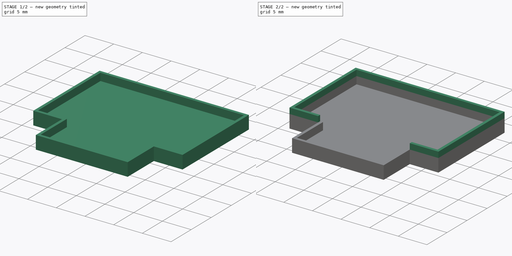
[diagram: build sequence overview — one tinted view per stage of 2, left to right]
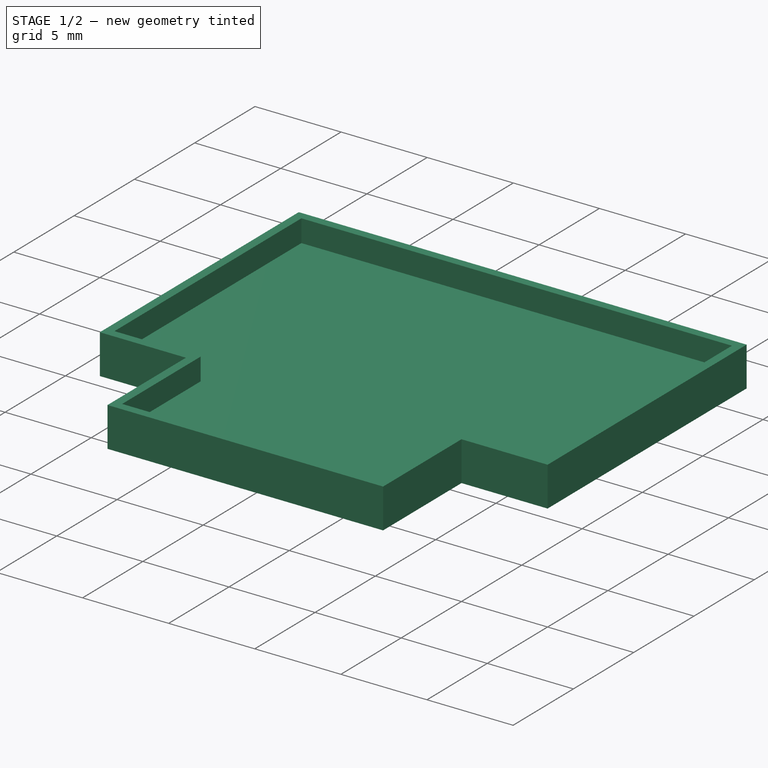
[diagram: stage 1 of 2 — iso view after this stage's code; geometry added in this stage tinted green]
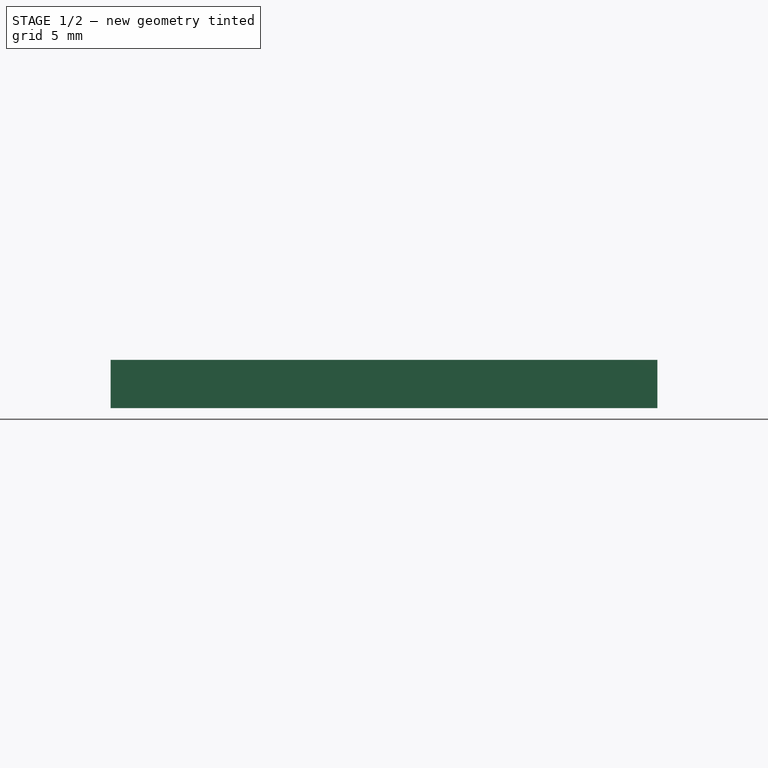
[diagram: stage 1 of 2 — front view after this stage's code; geometry added in this stage tinted green]
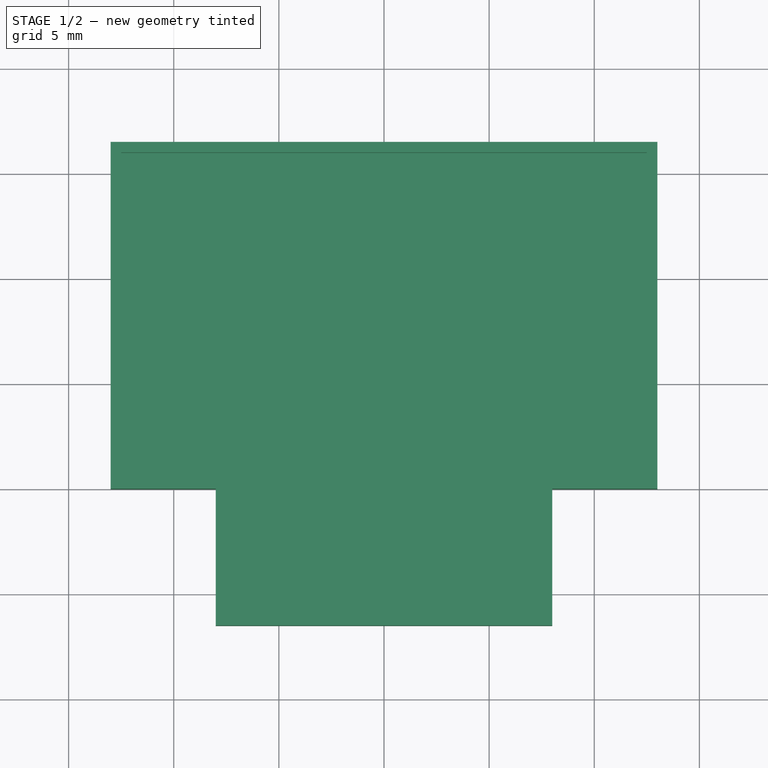
[diagram: stage 1 of 2 — top view after this stage's code; geometry added in this stage tinted green]
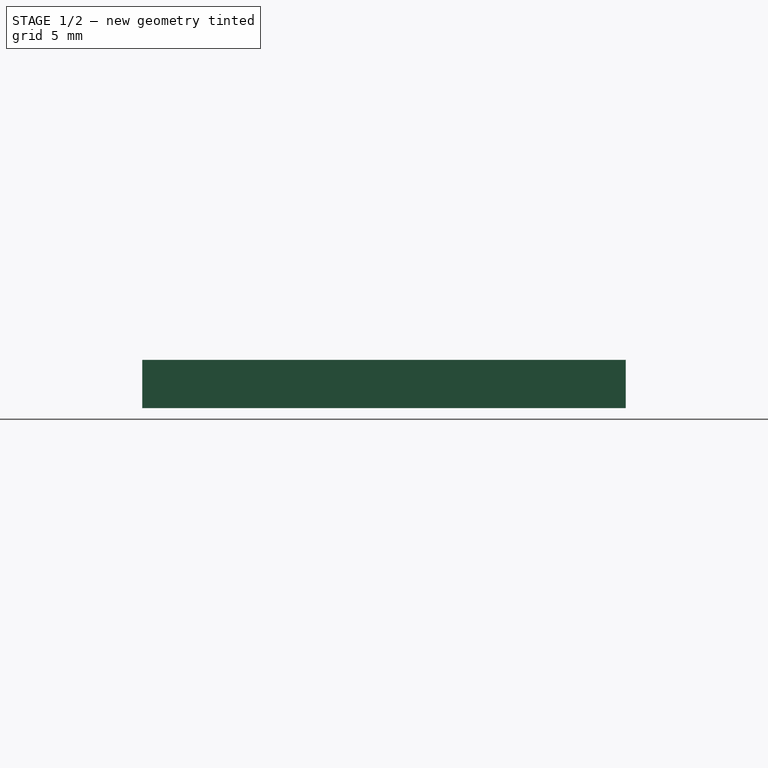
[diagram: stage 1 of 2 — right view after this stage's code; geometry added in this stage tinted green]
FCSTD DOCUMENT  (FreeCAD 0.19R24366 (Git))
Label: PimoroniTrackballEnclosure
License: All rights reserved
LicenseURL: http://en.wikipedia.org/wiki/All_rights_reserved
objects: Sketcher::SketchObject×3, PartDesign::Pad×3, PartDesign::Plane×1, PartDesign::Body×1
note: 11 computed .brp shape members not serialized (recipe doc carries the construction recipe); baked Part::Feature solids carry a one-line shape summary decoded from their .brp

FEATURE [Sketcher::SketchObject] Sketch
  FullyConstrained = true
  MapMode = 5
  Support = -> [XY_Plane]
  sketch-geometry (8):
    g0: LineSegment StartX=-13 StartY=11.5 StartZ=0 EndX=13 EndY=11.5 EndZ=0
    g1: LineSegment StartX=13 StartY=11.5 StartZ=0 EndX=13 EndY=-5 EndZ=0
    g2: LineSegment StartX=13 StartY=-5 StartZ=0 EndX=8 EndY=-5 EndZ=0
    g3: LineSegment StartX=8 StartY=-5 StartZ=0 EndX=8 EndY=-11.5 EndZ=0
    g4: LineSegment StartX=8 StartY=-11.5 StartZ=0 EndX=-8 EndY=-11.5 EndZ=0
    g5: LineSegment StartX=-8 StartY=-11.5 StartZ=0 EndX=-8 EndY=-5 EndZ=0
    g6: LineSegment StartX=-8 StartY=-5 StartZ=0 EndX=-13 EndY=-5 EndZ=0
    g7: LineSegment StartX=-13 StartY=-5 StartZ=0 EndX=-13 EndY=11.5 EndZ=0
  constraints (24):
    c: Horizontal(g0)
    c: Coincident(g0,g1)
    c: Vertical(g1)
    c: Coincident(g1,g2)
    c: Horizontal(g2)
    c: Coincident(g2,g3)
    c: Vertical(g3)
    c: Coincident(g3,g4)
    c: Horizontal(g4)
    c: Coincident(g4,g5)
    c: Vertical(g5)
    c: Coincident(g5,g6)
    c: Coincident(g6,g7)
    c: Coincident(g7,g0)
    c: Vertical(g7)
    c: Horizontal(g6)
    c: Horizontal(g5,g2)
    c: DistanceY(g3,g0) = 23
    c: DistanceY(g1,g1) = 16.5
    c: DistanceX(g0,g0) = 26
    c: DistanceX(g-1,g1) = 13
    c: DistanceX(g4,g4) = 16
    c: DistanceX(g-1,g3) = 8
    c: DistanceY(g-1,g0) = 11.5
FEATURE [PartDesign::Pad] Pad
  Direction = (1,1,1)
  Length = 1
  Length2 = 100
  Profile = -> Sketch
  Type = 0
FEATURE [PartDesign::Plane] DatumPlane
  Length = 60
  MapMode = 5
  Placement = pos=(0,0,1) rot=(0,0,1;0rad)
  ResizeMode = 0
  Support = -> [Pad]
  Width = 60
FEATURE [Sketcher::SketchObject] Sketch001
  ExternalGeometry = -> [Sketch]
  FullyConstrained = true
  MapMode = 5
  Placement = pos=(0,0,1) rot=(0,0,1;0rad)
  Support = -> [DatumPlane]
  sketch-geometry (16):
    g0: LineSegment StartX=-13 StartY=11.5 StartZ=0 EndX=13 EndY=11.5 EndZ=0
    g1: LineSegment StartX=13 StartY=11.5 StartZ=0 EndX=13 EndY=-5 EndZ=0
    g2: LineSegment StartX=13 StartY=-5 StartZ=0 EndX=8 EndY=-5 EndZ=0
    g3: LineSegment StartX=8 StartY=-5 StartZ=0 EndX=8 EndY=-11.5 EndZ=0
    g4: LineSegment StartX=8 StartY=-11.5 StartZ=0 EndX=-8 EndY=-11.5 EndZ=0
    g5: LineSegment StartX=-8 StartY=-11.5 StartZ=0 EndX=-8 EndY=-5 EndZ=0
    g6: LineSegment StartX=-8 StartY=-5 StartZ=0 EndX=-13 EndY=-5 EndZ=0
    g7: LineSegment StartX=-13 StartY=-5 StartZ=0 EndX=-13 EndY=11.5 EndZ=0
    g8: LineSegment StartX=-12.5 StartY=11 StartZ=0 EndX=-12.5 EndY=-4.5 EndZ=0
    g9: LineSegment StartX=-12.5 StartY=-4.5 StartZ=0 EndX=-7.5 EndY=-4.5 EndZ=0
    g10: LineSegment StartX=-7.5 StartY=-4.5 StartZ=0 EndX=-7.5 EndY=-11 EndZ=0
    g11: LineSegment StartX=-7.5 StartY=-11 StartZ=0 EndX=7.5 EndY=-11 EndZ=0
    g12: LineSegment StartX=7.5 StartY=-11 StartZ=0 EndX=7.5 EndY=-4.5 EndZ=0
    g13: LineSegment StartX=7.5 StartY=-4.5 StartZ=0 EndX=12.5 EndY=-4.5 EndZ=0
    g14: LineSegment StartX=12.5 StartY=-4.5 StartZ=0 EndX=12.5 EndY=11 EndZ=0
    g15: LineSegment StartX=12.5 StartY=11 StartZ=0 EndX=-12.5 EndY=11 EndZ=0
  constraints (40):
    c: Coincident(g-10,g0)
    c: Coincident(g0,g-10)
    c: Coincident(g0,g1)
    c: Coincident(g1,g-4)
    c: Coincident(g1,g2)
    c: Coincident(g2,g-5)
    c: Coincident(g2,g3)
    c: Coincident(g3,g-6)
    c: Coincident(g3,g4)
    c: Coincident(g4,g-7)
    c: Coincident(g4,g5)
    c: Coincident(g5,g-8)
    c: Coincident(g5,g6)
    c: Coincident(g6,g-9)
    c: Coincident(g6,g7)
    c: Coincident(g7,g0)
    c: Coincident(g8,g9)
    c: Coincident(g9,g10)
    c: Vertical(g10)
    c: Coincident(g10,g11)
    c: Horizontal(g11)
    c: Coincident(g11,g12)
    c: Vertical(g12)
    c: Coincident(g12,g13)
    c: Horizontal(g13)
    c: Coincident(g13,g14)
    c: Vertical(g14)
    c: Coincident(g14,g15)
    c: Coincident(g15,g8)
    c: Horizontal(g15)
    c: Vertical(g8)
    c: Horizontal(g9)
    c: DistanceX(g14,g0) = 0.5
    c: DistanceX(g0,g8) = 0.5
    c: DistanceX(g5,g9) = 0.5
    c: DistanceX(g12,g2) = 0.5
    c: DistanceY(g3,g11) = 0.5
    c: DistanceY(g5,g9) = 0.5
    c: DistanceY(g1,g13) = 0.5
    c: DistanceY(g14,g0) = 0.5
FEATURE [PartDesign::Pad] Pad001
  BaseFeature = -> Pad
  Direction = (1,1,1)
  Length = 1.3
  Length2 = 100
  Profile = -> Sketch001
  Type = 0
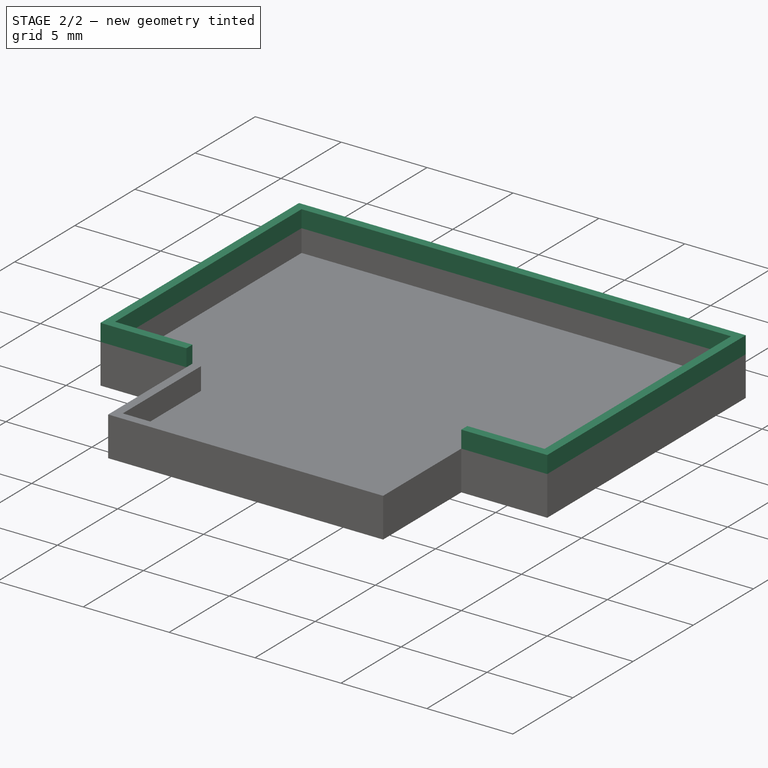
[diagram: stage 2 of 2 — iso view after this stage's code; geometry added in this stage tinted green]
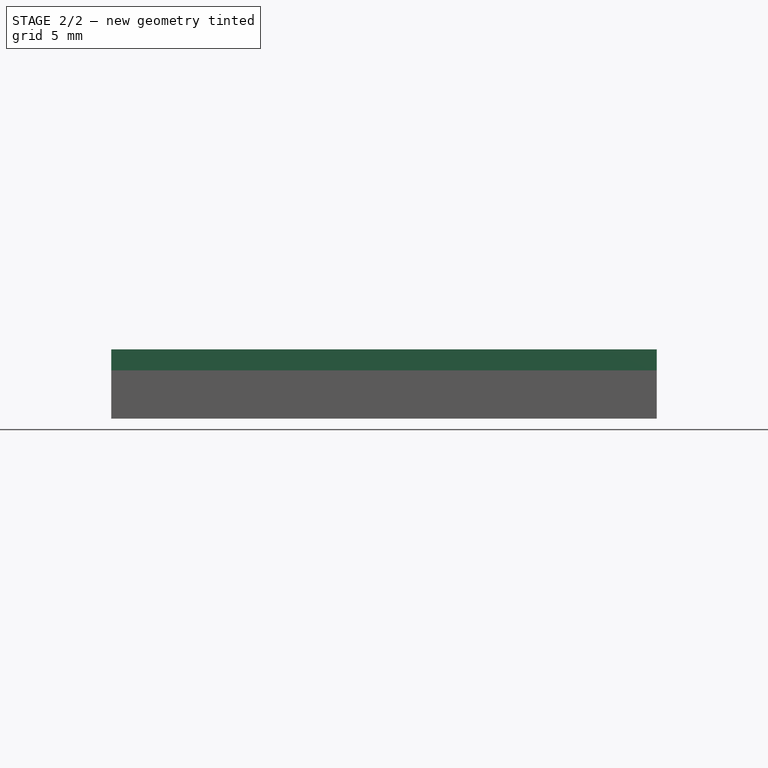
[diagram: stage 2 of 2 — front view after this stage's code; geometry added in this stage tinted green]
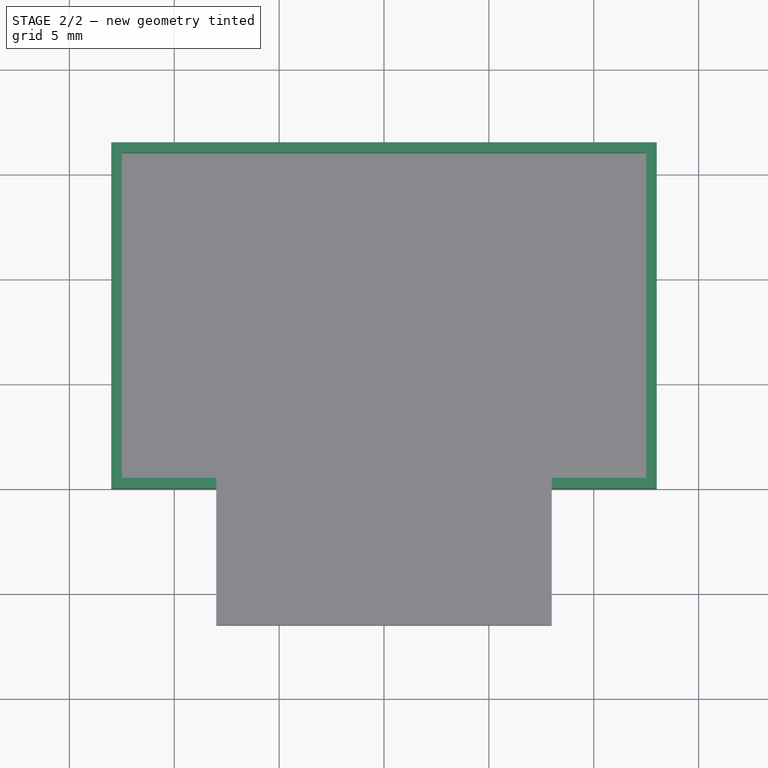
[diagram: stage 2 of 2 — top view after this stage's code; geometry added in this stage tinted green]
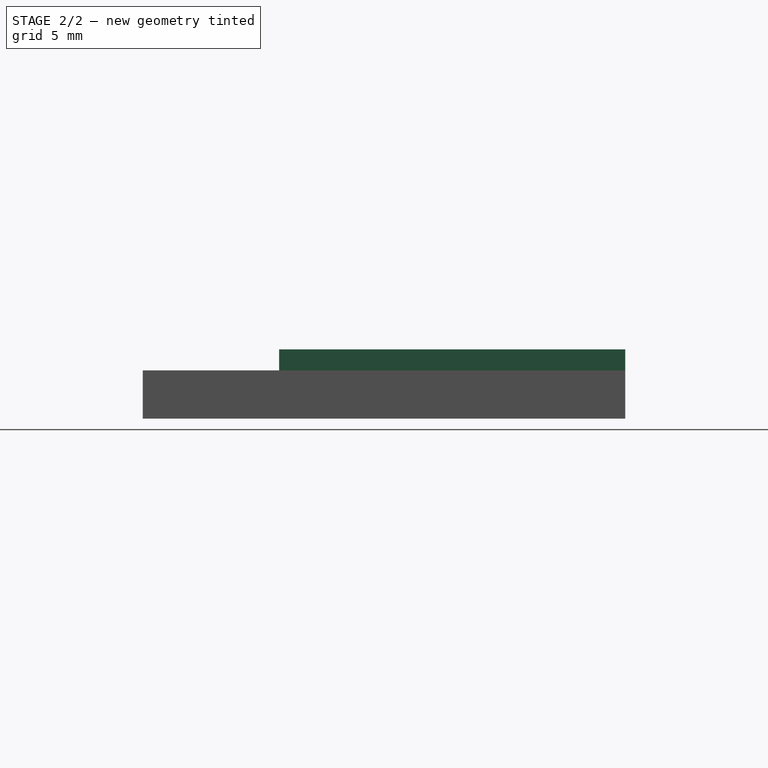
[diagram: stage 2 of 2 — right view after this stage's code; geometry added in this stage tinted green]
FEATURE [Sketcher::SketchObject] Sketch002
  ExternalGeometry = -> [Sketch]
  FullyConstrained = true
  MapMode = 5
  Placement = pos=(0,0,2.3) rot=(0,0,1;0rad)
  Support = -> [Pad001]
  sketch-geometry (12):
    g0: LineSegment StartX=-13 StartY=11.5 StartZ=0 EndX=13 EndY=11.5 EndZ=0
    g1: LineSegment StartX=13 StartY=11.5 StartZ=0 EndX=13 EndY=-5 EndZ=0
    g2: LineSegment StartX=13 StartY=-5 StartZ=0 EndX=8 EndY=-5 EndZ=0
    g3: LineSegment StartX=-8 StartY=-5 StartZ=0 EndX=-13 EndY=-5 EndZ=0
    g4: LineSegment StartX=-13 StartY=-5 StartZ=0 EndX=-13 EndY=11.5 EndZ=0
    g5: LineSegment StartX=-12.5 StartY=11 StartZ=0 EndX=-12.5 EndY=-4.5 EndZ=0
    g6: LineSegment StartX=-12.5 StartY=-4.5 StartZ=0 EndX=-8 EndY=-4.5 EndZ=0
    g7: LineSegment StartX=8 StartY=-4.5 StartZ=0 EndX=12.5 EndY=-4.5 EndZ=0
    g8: LineSegment StartX=12.5 StartY=-4.5 StartZ=0 EndX=12.5 EndY=11 EndZ=0
    g9: LineSegment StartX=12.5 StartY=11 StartZ=0 EndX=-12.5 EndY=11 EndZ=0
    g10: LineSegment StartX=8 StartY=-4.5 StartZ=0 EndX=8 EndY=-5 EndZ=0
    g11: LineSegment StartX=-8 StartY=-4.5 StartZ=0 EndX=-8 EndY=-5 EndZ=0
  constraints (30):
    c: Coincident(g-8,g0)
    c: Coincident(g0,g-8)
    c: Coincident(g0,g1)
    c: Coincident(g1,g-4)
    c: Coincident(g1,g2)
    c: Coincident(g3,g-7)
    c: Coincident(g3,g4)
    c: Coincident(g4,g0)
    c: Coincident(g5,g6)
    c: Horizontal(g7)
    c: Coincident(g7,g8)
    c: Vertical(g8)
    c: Coincident(g8,g9)
    c: Coincident(g9,g5)
    c: Horizontal(g9)
    c: Vertical(g5)
    c: Horizontal(g6)
    c: DistanceX(g8,g0) = 0.5
    c: DistanceX(g0,g5) = 0.5
    c: DistanceY(g-6,g6) = 0.5
    c: DistanceY(g1,g7) = 0.5
    c: DistanceY(g8,g0) = 0.5
    c: Coincident(g10,g7)
    c: Coincident(g10,g2)
    c: Coincident(g11,g6)
    c: Coincident(g11,g3)
    c: Vertical(g11)
    c: Coincident(g-6,g3)
    c: Vertical(g10)
    c: Coincident(g2,g-3)
FEATURE [PartDesign::Pad] Pad002
  BaseFeature = -> Pad001
  Direction = (1,1,1)
  Length = 1
  Length2 = 100
  Profile = -> Sketch002
  Type = 0
FEATURE [PartDesign::Body] Body
  Group = -> [Sketch,Pad,DatumPlane,Sketch001,Pad001,Sketch002,Pad002]
  Origin = -> Origin
  Tip = -> Pad002
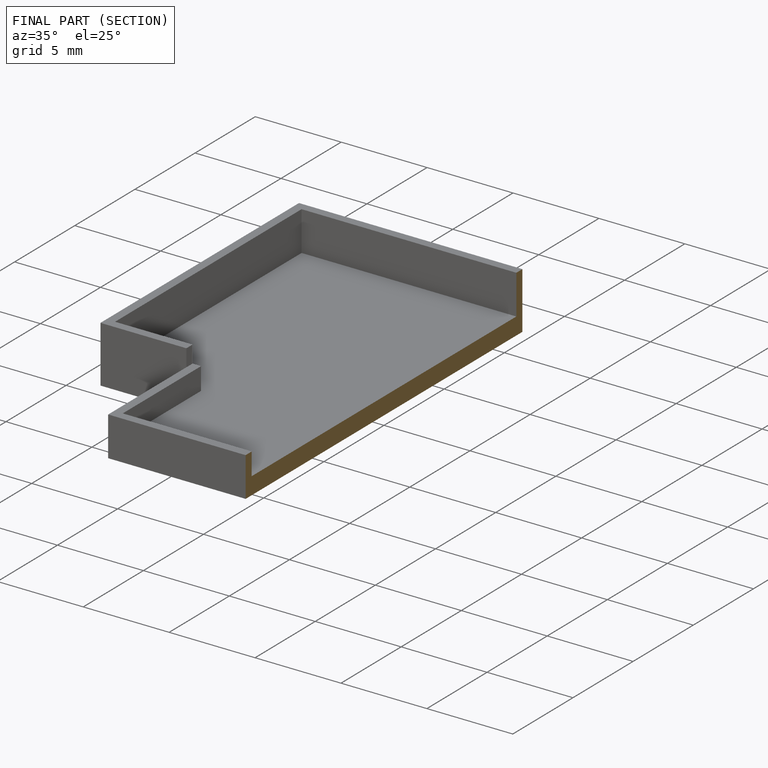
[diagram: finished part — half-section view (interior)]
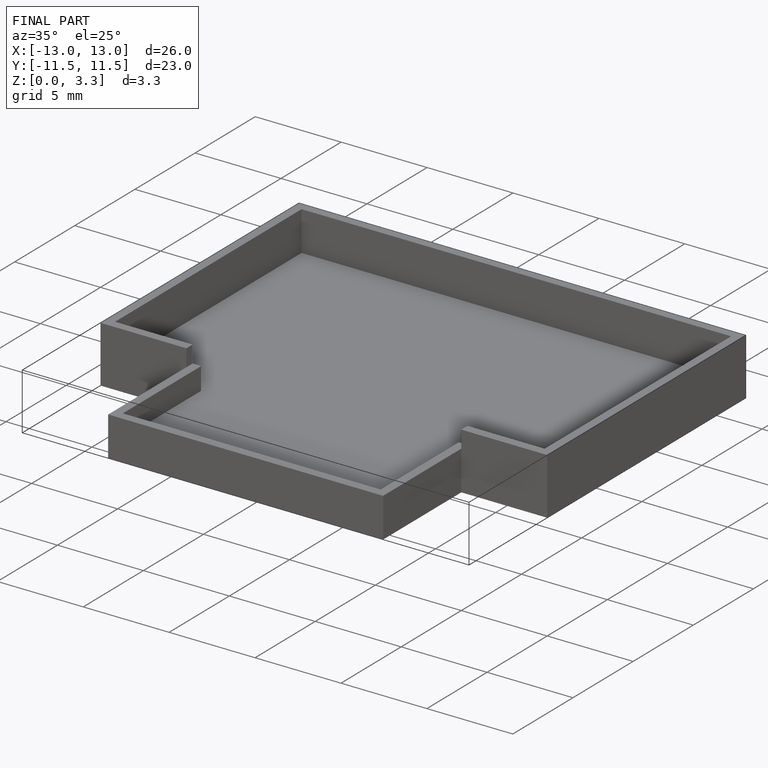
[diagram: finished part — iso view with bounding-box wireframe]
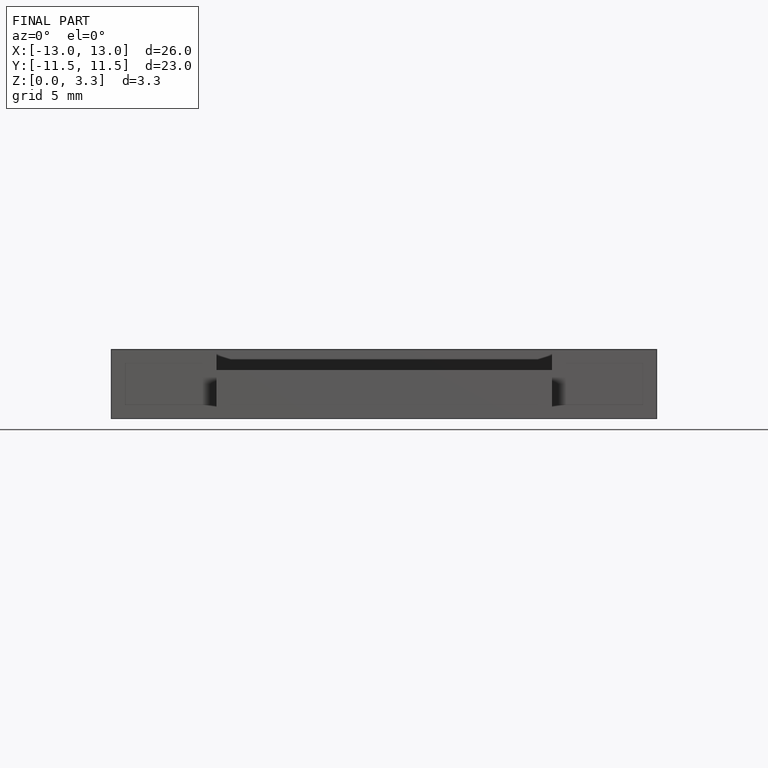
[diagram: finished part — front view with bounding-box wireframe]
